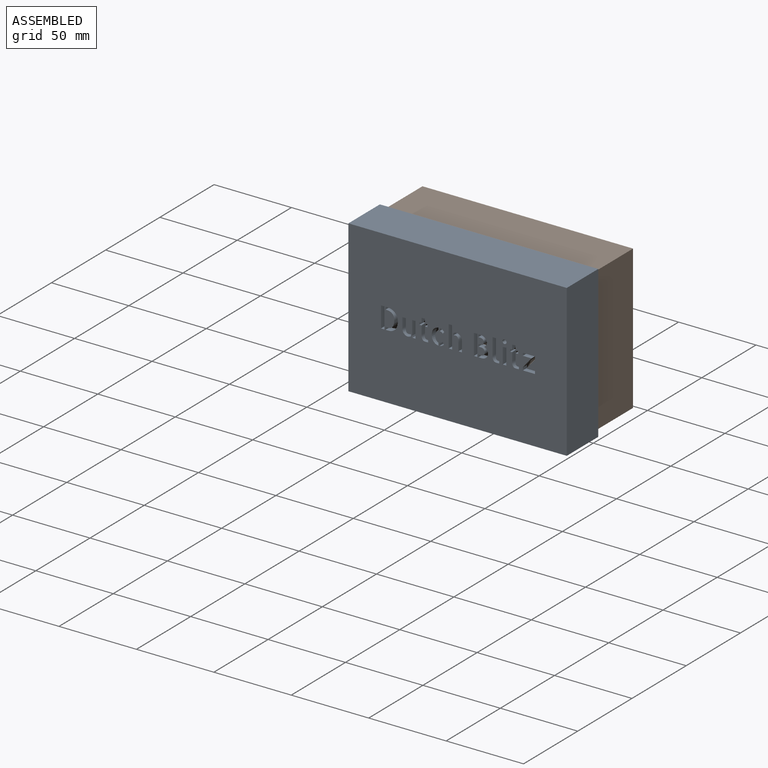
[diagram: assembled view]
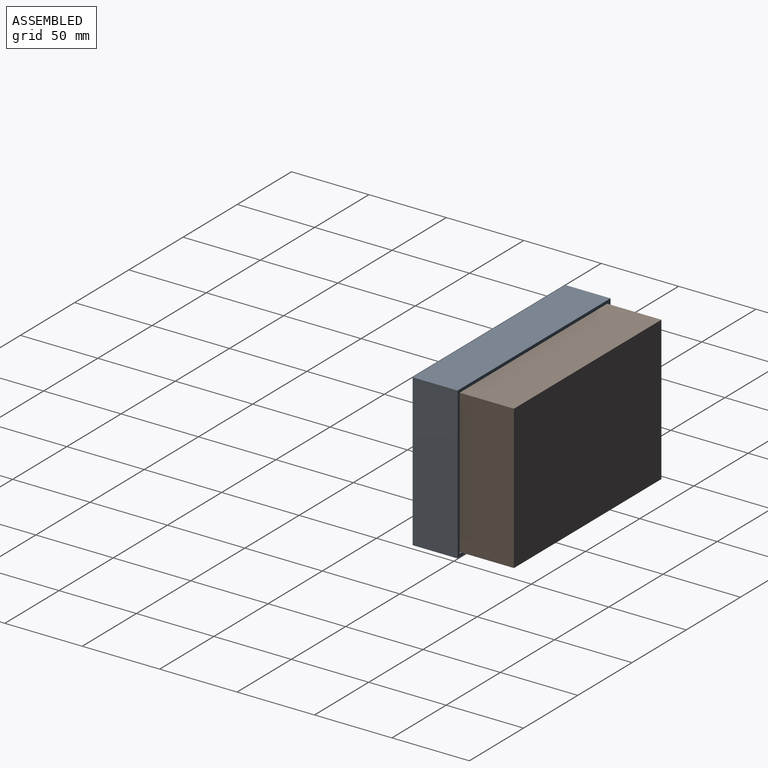
[diagram: assembled view, second angle]
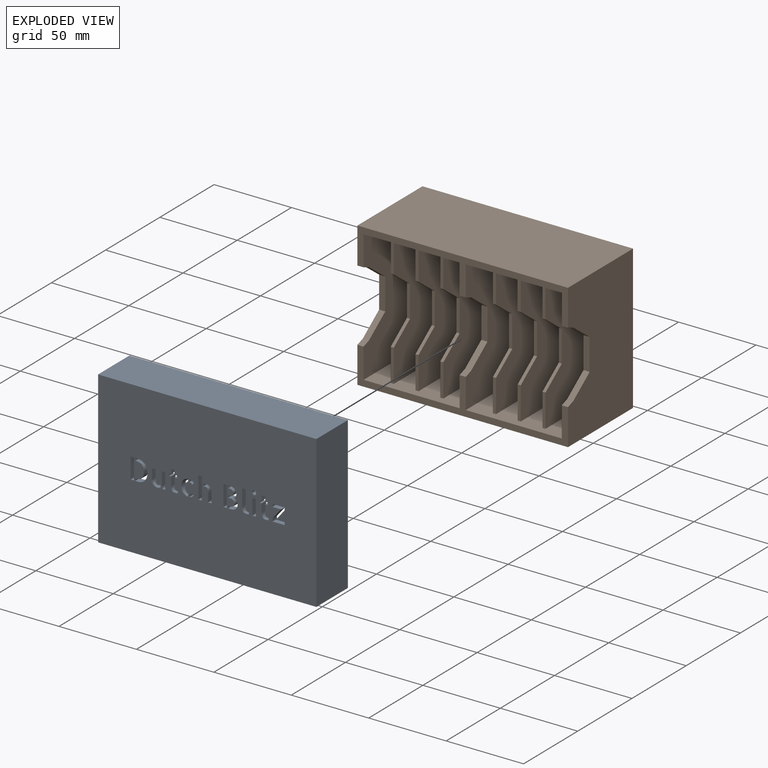
[diagram: exploded view]
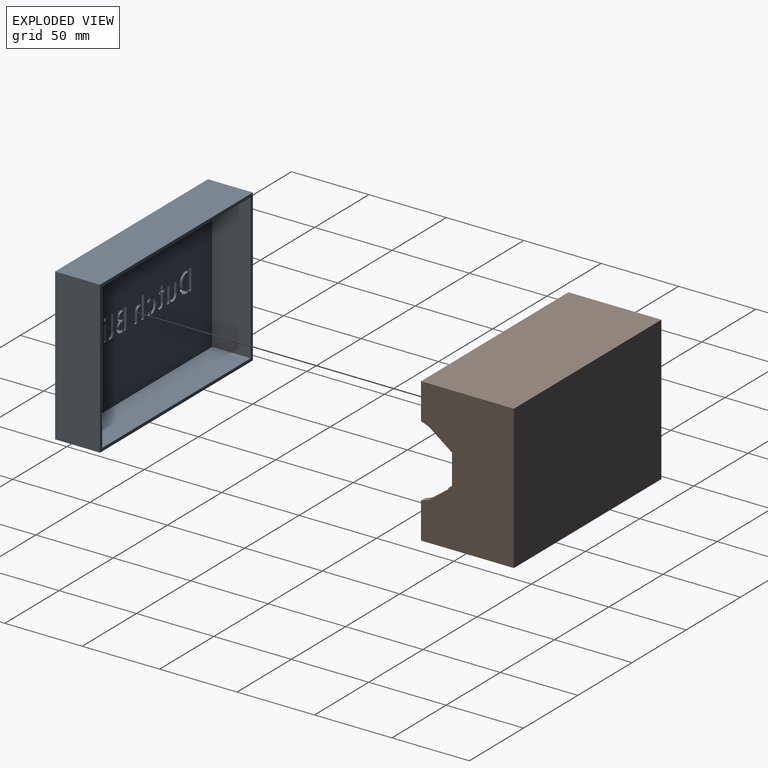
[diagram: exploded view, second angle]
ASSEMBLY  parts=2 mates=3
PART A: 246 faces, bbox 141x29x98 mm
  f0: plane 141x98mm, normal (0,-1,0), area 13360.9mm2, adj f2,f3,f4,f5,f11,f12,f13,f14
  f1: plane 137x94mm, normal (0,1,0), area 12420.9mm2, adj f6,f7,f8,f9,f11,f12,f13,f14
  f2: plane 98x29mm, normal (1,0,0), area 2842mm2, adj f0,f3,f5,f10
  f3: plane 141x29mm, normal (0,0,1), area 4089mm2, adj f0,f2,f4,f10
  f4: plane 98x29mm, normal (-1,0,0), area 2842mm2, adj f0,f3,f5,f10
  f5: plane 141x29mm, normal (0,0,-1), area 4089mm2, adj f0,f2,f4,f10
  f6: plane 94x25mm, normal (1,0,0), area 2350mm2, adj f1,f7,f9,f10
  f7: plane 137x25mm, normal (0,0,-1), area 3425mm2, adj f1,f6,f8,f10
  f8: plane 94x25mm, normal (-1,0,0), area 2350mm2, adj f1,f7,f9,f10
  f9: plane 137x25mm, normal (0,0,1), area 3425mm2, adj f1,f6,f8,f10
  f10: plane 141x98mm, normal (0,1,0), area 940mm2, adj f2,f3,f4,f5,f6,f7,f8,f9
  f11: plane 7.82x4mm, normal (0,0,-1), area 31.3mm2, adj f0,f1,f12,f22
  f12: plane 4x1.77mm, normal (1,0,0), area 7.1mm2, adj f0,f1,f11,f13
  f13: plane 5.65x4mm, normal (0,0,1), area 22.6mm2, adj f0,f1,f12,f14
  f14: plane 4x0.36mm, normal (0.62,0,-0.78), area 1.9mm2, adj f0,f1,f13,f15
  f15: plane 6.46x5.29mm, normal (0.77,0,-0.63), area 33.4mm2, adj f0,f1,f14,f16
  f16: plane 4x1.77mm, normal (1,0,0), area 7.1mm2, adj f0,f1,f15,f17
  f17: plane 7.82x4mm, normal (0,0,1), area 31.3mm2, adj f0,f1,f16,f18
  f18: plane 4x1.77mm, normal (-1,0,0), area 7.1mm2, adj f0,f1,f17,f19
  f19: plane 5.65x4mm, normal (0,0,-1), area 22.6mm2, adj f0,f1,f18,f20
  f20: plane 4x0.36mm, normal (-0.62,0,0.78), area 1.9mm2, adj f0,f1,f19,f21
  f21: plane 6.46x5.29mm, normal (-0.77,0,0.63), area 33.4mm2, adj f0,f1,f20,f22
  f22: plane 4x1.77mm, normal (-1,0,0), area 7.1mm2, adj f0,f1,f11,f21
  f23: extruded ~4x0.97mm, area 4mm2, adj f0,f1,f24,f47
  f24: plane 5.67x4mm, normal (-1,0,0), area 22.7mm2, adj f0,f1,f23,f25
  f25: plane 4x1.64mm, normal (0,0,1), area 6.6mm2, adj f0,f1,f24,f26
  f26: plane 4x1.49mm, normal (-1,0,0), area 6mm2, adj f0,f1,f25,f27
  f27: plane 4x1.64mm, normal (0,0,-1), area 6.6mm2, adj f0,f1,f26,f28
  f28: plane 4x2.92mm, normal (-1,0,0), area 11.7mm2, adj f0,f1,f27,f29
  f29: plane 4x2.21mm, normal (0,0,-1), area 8.8mm2, adj f0,f1,f28,f30
  f30: plane 4x2.92mm, normal (1,0,0), area 11.7mm2, adj f0,f1,f29,f31
  f31: plane 4x1.35mm, normal (0,0,-1), area 5.4mm2, adj f0,f1,f30,f32
  f32: plane 4x1.49mm, normal (1,0,0), area 6mm2, adj f0,f1,f31,f33
  f33: plane 4x1.35mm, normal (0,0,1), area 5.4mm2, adj f0,f1,f32,f34
  f34: plane 5.54x4mm, normal (1,0,0), area 22.2mm2, adj f0,f1,f33,f35
  f35: extruded ~4x0.77mm, area 3.1mm2, adj f0,f1,f34,f36
  f36: extruded ~4x1.01mm, area 4.2mm2, adj f0,f1,f35,f37
  f37: extruded ~4x0.95mm, area 4.3mm2, adj f0,f1,f36,f38
  f38: extruded ~4x0.97mm, area 4.5mm2, adj f0,f1,f37,f39
  f39: extruded ~4x0.48mm, area 1.9mm2, adj f0,f1,f38,f40
  f40: extruded ~4x0.56mm, area 2.2mm2, adj f0,f1,f39,f41
  f41: extruded ~4x0.56mm, area 2.2mm2, adj f0,f1,f40,f42
  f42: extruded ~4x0.48mm, area 1.9mm2, adj f0,f1,f41,f43
  f43: extruded ~4x0.48mm, area 1.9mm2, adj f0,f1,f42,f44
  f44: plane 4x1.35mm, normal (-1,0,0), area 5.4mm2, adj f0,f1,f43,f45
  f45: extruded ~4x0.79mm, area 3.2mm2, adj f0,f1,f44,f46
  f46: extruded ~4x0.68mm, area 2.9mm2, adj f0,f1,f45,f47
  f47: extruded ~4x0.53mm, area 2.9mm2, adj f0,f1,f23,f46
  f48: extruded ~4x0.92mm, area 4.1mm2, adj f0,f1,f49,f55
  f49: extruded ~4x0.93mm, area 4.1mm2, adj f0,f1,f48,f50
  f50: extruded ~4x0.93mm, area 4.1mm2, adj f0,f1,f49,f51
  f51: extruded ~4x0.91mm, area 4.1mm2, adj f0,f1,f50,f52
  f52: extruded ~4x0.93mm, area 4.1mm2, adj f0,f1,f51,f53
  f53: extruded ~4x0.91mm, area 4mm2, adj f0,f1,f52,f54
  f54: extruded ~4x0.92mm, area 4.1mm2, adj f0,f1,f53,f55
  f55: extruded ~4x0.93mm, area 4.1mm2, adj f0,f1,f48,f54
  f56: plane 4x2.23mm, normal (0,0,1), area 8.9mm2, adj f0,f1,f57,f59
  f57: plane 10.28x4mm, normal (-1,0,0), area 41.1mm2, adj f0,f1,f56,f58
  f58: plane 4x2.23mm, normal (0,0,-1), area 8.9mm2, adj f0,f1,f57,f59
  f59: plane 10.28x4mm, normal (1,0,0), area 41.1mm2, adj f0,f1,f56,f58
  f60: extruded ~4x0.72mm, area 3.5mm2, adj f0,f1,f61,f77
  f61: extruded ~4x1.13mm, area 5.8mm2, adj f0,f1,f60,f62
  f62: extruded ~4x1.39mm, area 5.8mm2, adj f0,f1,f61,f63
  f63: extruded ~4x1.12mm, area 4.6mm2, adj f0,f1,f62,f64
  f64: extruded ~4x1.07mm, area 4.6mm2, adj f0,f1,f63,f65
  f65: plane 4x1.4mm, normal (1,0,0), area 5.6mm2, adj f0,f1,f64,f66
  f66: extruded ~4x0.83mm, area 3.5mm2, adj f0,f1,f65,f67
  f67: extruded ~4x0.68mm, area 2.8mm2, adj f0,f1,f66,f68
  f68: extruded ~4x0.97mm, area 4mm2, adj f0,f1,f67,f69
  f69: extruded ~4x0.68mm, area 3.5mm2, adj f0,f1,f68,f70
  f70: extruded ~4x1mm, area 4.2mm2, adj f0,f1,f69,f71
  f71: extruded ~4x1.18mm, area 4.7mm2, adj f0,f1,f70,f72
  f72: plane 5.6x4mm, normal (1,0,0), area 22.4mm2, adj f0,f1,f71,f73
  f73: plane 4x2.22mm, normal (0,0,1), area 8.9mm2, adj f0,f1,f72,f74
  f74: plane 5.78x4mm, normal (-1,0,0), area 23.1mm2, adj f0,f1,f73,f75
  f75: extruded ~4x0.89mm, area 3.6mm2, adj f0,f1,f74,f76
  f76: extruded ~4x0.9mm, area 3.6mm2, adj f0,f1,f75,f77
  f77: extruded ~4x0.86mm, area 3.6mm2, adj f0,f1,f60,f76
  f78: extruded ~4x0.89mm, area 3.8mm2, adj f0,f1,f79,f116
  f79: extruded ~4x0.68mm, area 3mm2, adj f0,f1,f78,f80
  f80: extruded ~4x0.63mm, area 3.4mm2, adj f0,f1,f79,f81
  f81: extruded ~4x0.81mm, area 3.7mm2, adj f0,f1,f80,f82
  f82: extruded ~4x1.03mm, area 4.2mm2, adj f0,f1,f81,f83
  f83: extruded ~4x1.67mm, area 6.9mm2, adj f0,f1,f82,f84
  f84: extruded ~4x1.14mm, area 6.1mm2, adj f0,f1,f83,f85
  f85: extruded ~4x1.42mm, area 6.3mm2, adj f0,f1,f84,f86
  f86: extruded ~4x1.66mm, area 6.7mm2, adj f0,f1,f85,f87
  f87: plane 4x0.93mm, normal (0,0,-1), area 3.7mm2, adj f0,f1,f86,f88
  f88: plane 4x1.66mm, normal (1,0,0), area 6.6mm2, adj f0,f1,f87,f89
  f89: plane 4x0.71mm, normal (0,0,1), area 2.8mm2, adj f0,f1,f88,f90
  f90: extruded ~4x1.35mm, area 5.5mm2, adj f0,f1,f89,f91
  f91: extruded ~4x0.78mm, area 3.7mm2, adj f0,f1,f90,f92
  f92: extruded ~4x0.65mm, area 3mm2, adj f0,f1,f91,f93
  f93: extruded ~4x0.69mm, area 2.8mm2, adj f0,f1,f92,f94
  f94: extruded ~4x1.26mm, area 5.2mm2, adj f0,f1,f93,f95
  f95: extruded ~4x0.62mm, area 3.5mm2, adj f0,f1,f94,f96
  f96: extruded ~4x0.78mm, area 3.3mm2, adj f0,f1,f95,f97
  f97: extruded ~4x0.82mm, area 3.3mm2, adj f0,f1,f96,f98
  f98: plane 4x0.88mm, normal (0,0,-1), area 3.5mm2, adj f0,f1,f97,f99
  f99: plane 4x1.48mm, normal (1,0,0), area 5.9mm2, adj f0,f1,f98,f100
  f100: plane 4x1.82mm, normal (0,0,1), area 7.3mm2, adj f0,f1,f99,f101
  f101: extruded ~4x1.66mm, area 7.4mm2, adj f0,f1,f100,f102
  f102: extruded ~4x1.66mm, area 7.2mm2, adj f0,f1,f101,f103
  f103: extruded ~4x1.66mm, area 7.1mm2, adj f0,f1,f102,f104
  f104: extruded ~4x1.51mm, area 6.8mm2, adj f0,f1,f103,f105
  f105: plane 4x1.99mm, normal (0,0,-1), area 8mm2, adj f0,f1,f104,f106
  f106: plane 4x1.6mm, normal (1,0,0), area 6.4mm2, adj f0,f1,f105,f107
  f107: plane 4x2.12mm, normal (0,0,1), area 8.5mm2, adj f0,f1,f106,f108
  f108: extruded ~4x0.46mm, area 1.8mm2, adj f0,f1,f107,f109
  f109: extruded ~4x0.79mm, area 3.2mm2, adj f0,f1,f108,f110
  f110: extruded ~4x0.93mm, area 4mm2, adj f0,f1,f109,f111
  f111: extruded ~4x0.89mm, area 4.5mm2, adj f0,f1,f110,f112
  f112: extruded ~4x1.09mm, area 5.2mm2, adj f0,f1,f111,f113
  f113: extruded ~4x1.57mm, area 6.4mm2, adj f0,f1,f112,f114
  f114: extruded ~4x1.32mm, area 5.5mm2, adj f0,f1,f113,f115
  f115: extruded ~4x0.97mm, area 4.8mm2, adj f0,f1,f114,f116
  f116: extruded ~4x0.88mm, area 4.3mm2, adj f0,f1,f78,f115
  f117: plane 4x2.19mm, normal (0,0,-1), area 8.8mm2, adj f0,f1,f118,f120
  f118: plane 13.44x4mm, normal (1,0,0), area 53.8mm2, adj f0,f1,f117,f119
  f119: plane 4x2.19mm, normal (0,0,1), area 8.8mm2, adj f0,f1,f118,f120
  f120: plane 13.44x4mm, normal (-1,0,0), area 53.8mm2, adj f0,f1,f117,f119
  f121: extruded ~4x0.97mm, area 4mm2, adj f0,f1,f122,f137
  f122: plane 11.03x4mm, normal (-1,0,0), area 44.1mm2, adj f0,f1,f121,f123
  f123: plane 4x2.23mm, normal (0,0,-1), area 8.9mm2, adj f0,f1,f122,f124
  f124: plane 10.92x4mm, normal (1,0,0), area 43.7mm2, adj f0,f1,f123,f125
  f125: extruded ~4x0.77mm, area 3.1mm2, adj f0,f1,f124,f126
  f126: extruded ~4x1.01mm, area 4.2mm2, adj f0,f1,f125,f127
  f127: extruded ~4x0.94mm, area 4.3mm2, adj f0,f1,f126,f128
  f128: extruded ~4x0.97mm, area 4.5mm2, adj f0,f1,f127,f129
  f129: extruded ~4x0.49mm, area 2mm2, adj f0,f1,f128,f130
  f130: extruded ~4x0.55mm, area 2.2mm2, adj f0,f1,f129,f131
  f131: extruded ~4x0.55mm, area 2.2mm2, adj f0,f1,f130,f132
  f132: extruded ~4x0.48mm, area 1.9mm2, adj f0,f1,f131,f133
  f133: extruded ~4x0.49mm, area 2mm2, adj f0,f1,f132,f134
  f134: plane 4x1.35mm, normal (-1,0,0), area 5.4mm2, adj f0,f1,f133,f135
  f135: extruded ~4x0.81mm, area 3.3mm2, adj f0,f1,f134,f136
  f136: extruded ~4x0.67mm, area 2.8mm2, adj f0,f1,f135,f137
  f137: extruded ~4x0.53mm, area 2.8mm2, adj f0,f1,f121,f136
  f138: extruded ~4x0.76mm, area 3.9mm2, adj f0,f1,f139,f143
  f139: plane 4x1.18mm, normal (-0.77,0,0.64), area 6.2mm2, adj f0,f1,f138,f140
  f140: extruded ~4x1.3mm, area 6.8mm2, adj f0,f1,f139,f141
  f141: extruded ~4x1.72mm, area 7.2mm2, adj f0,f1,f140,f142
  f142: plane 4x1.75mm, normal (1,0,0), area 7mm2, adj f0,f1,f141,f143
  f143: extruded ~4x1.29mm, area 5.4mm2, adj f0,f1,f138,f142
  f144: extruded ~4x1.12mm, area 4.7mm2, adj f0,f1,f145,f149
  f145: plane 4x1.81mm, normal (1,0,0), area 7.2mm2, adj f0,f1,f144,f146
  f146: extruded ~4x1.6mm, area 6.7mm2, adj f0,f1,f145,f147
  f147: extruded ~4x1.22mm, area 6.6mm2, adj f0,f1,f146,f148
  f148: plane 4x1.18mm, normal (-0.82,0,-0.57), area 5.8mm2, adj f0,f1,f147,f149
  f149: extruded ~4x0.89mm, area 4.2mm2, adj f0,f1,f144,f148
  f150: extruded ~4x1.95mm, area 7.9mm2, adj f0,f1,f151,f165
  f151: extruded ~4x1.97mm, area 8mm2, adj f0,f1,f150,f152
  f152: extruded ~4x1.63mm, area 7.4mm2, adj f0,f1,f151,f153
  f153: extruded ~4x1.37mm, area 7.1mm2, adj f0,f1,f152,f154
  f154: extruded ~4x1.81mm, area 7.5mm2, adj f0,f1,f153,f155
  f155: plane 4x1.81mm, normal (-1,0,0), area 7.2mm2, adj f0,f1,f154,f156
  f156: extruded ~4x0.85mm, area 3.8mm2, adj f0,f1,f155,f157
  f157: extruded ~4x0.77mm, area 4mm2, adj f0,f1,f156,f158
  f158: extruded ~4x1.05mm, area 4.5mm2, adj f0,f1,f157,f159
  f159: extruded ~4x1.27mm, area 5.1mm2, adj f0,f1,f158,f160
  f160: extruded ~4x2.24mm, area 9.3mm2, adj f0,f1,f159,f161
  f161: extruded ~4x1.46mm, area 7.6mm2, adj f0,f1,f160,f162
  f162: plane 4x1.77mm, normal (-1,0,0), area 7.1mm2, adj f0,f1,f161,f163
  f163: extruded ~4x1.78mm, area 7.4mm2, adj f0,f1,f162,f164
  f164: extruded ~4x1.38mm, area 7.1mm2, adj f0,f1,f163,f165
  f165: extruded ~4x1.6mm, area 7.4mm2, adj f0,f1,f150,f164
  f166: plane 4x2.21mm, normal (0,0,-1), area 8.8mm2, adj f0,f1,f167,f169
  f167: plane 14.17x4mm, normal (1,0,0), area 56.7mm2, adj f0,f1,f166,f168
  f168: plane 4x2.21mm, normal (0,0,1), area 8.8mm2, adj f0,f1,f167,f169
  f169: plane 14.17x4mm, normal (-1,0,0), area 56.7mm2, adj f0,f1,f166,f168
  f170: extruded ~4x0.97mm, area 4mm2, adj f0,f1,f171,f194
  f171: plane 5.67x4mm, normal (-1,0,0), area 22.7mm2, adj f0,f1,f170,f172
  f172: plane 4x1.64mm, normal (0,0,1), area 6.6mm2, adj f0,f1,f171,f173
  f173: plane 4x1.49mm, normal (-1,0,0), area 6mm2, adj f0,f1,f172,f174
  f174: plane 4x1.64mm, normal (0,0,-1), area 6.6mm2, adj f0,f1,f173,f175
  f175: plane 4x2.92mm, normal (-1,0,0), area 11.7mm2, adj f0,f1,f174,f176
  f176: plane 4x2.21mm, normal (0,0,-1), area 8.8mm2, adj f0,f1,f175,f177
  f177: plane 4x2.92mm, normal (1,0,0), area 11.7mm2, adj f0,f1,f176,f178
  f178: plane 4x1.35mm, normal (0,0,-1), area 5.4mm2, adj f0,f1,f177,f179
  f179: plane 4x1.49mm, normal (1,0,0), area 6mm2, adj f0,f1,f178,f180
  f180: plane 4x1.35mm, normal (0,0,1), area 5.4mm2, adj f0,f1,f179,f181
  f181: plane 5.54x4mm, normal (1,0,0), area 22.2mm2, adj f0,f1,f180,f182
  f182: extruded ~4x0.77mm, area 3.1mm2, adj f0,f1,f181,f183
  f183: extruded ~4x1.01mm, area 4.2mm2, adj f0,f1,f182,f184
  f184: extruded ~4x0.95mm, area 4.3mm2, adj f0,f1,f183,f185
  f185: extruded ~4x0.97mm, area 4.5mm2, adj f0,f1,f184,f186
  f186: extruded ~4x0.48mm, area 1.9mm2, adj f0,f1,f185,f187
  f187: extruded ~4x0.56mm, area 2.2mm2, adj f0,f1,f186,f188
  f188: extruded ~4x0.56mm, area 2.2mm2, adj f0,f1,f187,f189
  f189: extruded ~4x0.48mm, area 1.9mm2, adj f0,f1,f188,f190
  f190: extruded ~4x0.48mm, area 1.9mm2, adj f0,f1,f189,f191
  f191: plane 4x1.35mm, normal (-1,0,0), area 5.4mm2, adj f0,f1,f190,f192
  f192: extruded ~4x0.79mm, area 3.2mm2, adj f0,f1,f191,f193
  f193: extruded ~4x0.68mm, area 2.9mm2, adj f0,f1,f192,f194
  f194: extruded ~4x0.53mm, area 2.9mm2, adj f0,f1,f170,f193
  f195: plane 10.28x4mm, normal (-1,0,0), area 41.1mm2, adj f0,f1,f196,f199
  f196: plane 4x2.22mm, normal (0,0,-1), area 8.9mm2, adj f0,f1,f195,f197
  f197: plane 9.23x4mm, normal (1,0,0), area 36.9mm2, adj f0,f1,f196,f198
  f198: plane 4x1.06mm, normal (0.98,0,0.22), area 4.3mm2, adj f0,f1,f197,f199
  f199: plane 4x1.99mm, normal (0,0,1), area 7.9mm2, adj f0,f1,f195,f198
  f200: extruded ~4x1.19mm, area 4.8mm2, adj f0,f1,f201,f219
  f201: plane 5.6x4mm, normal (-1,0,0), area 22.4mm2, adj f0,f1,f200,f202
  f202: plane 4x2.22mm, normal (0,0,-1), area 8.9mm2, adj f0,f1,f201,f203
  f203: plane 5.78x4mm, normal (1,0,0), area 23.1mm2, adj f0,f1,f202,f204
  f204: extruded ~4x0.89mm, area 3.6mm2, adj f0,f1,f203,f205
  f205: extruded ~4x0.9mm, area 3.6mm2, adj f0,f1,f204,f206
  f206: extruded ~4x0.86mm, area 3.6mm2, adj f0,f1,f205,f207
  f207: extruded ~4x0.72mm, area 3.5mm2, adj f0,f1,f206,f208
  f208: extruded ~4x0.55mm, area 3mm2, adj f0,f1,f207,f209
  f209: extruded ~4x0.57mm, area 2.8mm2, adj f0,f1,f208,f210
  f210: extruded ~4x0.65mm, area 2.8mm2, adj f0,f1,f209,f211
  f211: extruded ~4x0.78mm, area 3.2mm2, adj f0,f1,f210,f212
  f212: extruded ~4x1.1mm, area 4.5mm2, adj f0,f1,f211,f213
  f213: extruded ~4x1.03mm, area 4.5mm2, adj f0,f1,f212,f214
  f214: plane 4x1.35mm, normal (-1,0,0), area 5.4mm2, adj f0,f1,f213,f215
  f215: extruded ~4x0.84mm, area 3.5mm2, adj f0,f1,f214,f216
  f216: extruded ~4x0.67mm, area 2.7mm2, adj f0,f1,f215,f217
  f217: extruded ~4x0.97mm, area 4.1mm2, adj f0,f1,f216,f218
  f218: extruded ~4x0.67mm, area 3.5mm2, adj f0,f1,f217,f219
  f219: extruded ~4x0.98mm, area 4mm2, adj f0,f1,f200,f218
  f220: extruded ~4x2.98mm, area 12.2mm2, adj f0,f1,f221,f241
  f221: plane 4x1.11mm, normal (0,0,-1), area 4.5mm2, adj f0,f1,f220,f222
  f222: plane 4x1.66mm, normal (1,0,0), area 6.6mm2, adj f0,f1,f221,f223
  f223: plane 4x0.53mm, normal (0,0,1), area 2.1mm2, adj f0,f1,f222,f224
  f224: extruded ~4x2.55mm, area 10.4mm2, adj f0,f1,f223,f225
  f225: extruded ~4x1.56mm, area 7.6mm2, adj f0,f1,f224,f226
  f226: extruded ~4x1.49mm, area 6.8mm2, adj f0,f1,f225,f227
  f227: extruded ~4x1.66mm, area 6.7mm2, adj f0,f1,f226,f228
  f228: extruded ~4.12x4mm, area 17.2mm2, adj f0,f1,f227,f229
  f229: extruded ~4x3.21mm, area 14.6mm2, adj f0,f1,f228,f230
  f230: plane 4x1.42mm, normal (0,0,-1), area 5.7mm2, adj f0,f1,f229,f231
  f231: plane 4x1.6mm, normal (1,0,0), area 6.4mm2, adj f0,f1,f230,f232
  f232: plane 4x2.15mm, normal (0,0,1), area 8.6mm2, adj f0,f1,f231,f233
  f233: extruded ~4x0.78mm, area 3.1mm2, adj f0,f1,f232,f234
  f234: extruded ~4x1.17mm, area 4.8mm2, adj f0,f1,f233,f235
  f235: extruded ~4x1.32mm, area 6mm2, adj f0,f1,f234,f236
  f236: extruded ~4x1.25mm, area 7.1mm2, adj f0,f1,f235,f237
  f237: extruded ~4x1.97mm, area 8.7mm2, adj f0,f1,f236,f238
  f238: extruded ~4x2.83mm, area 11.5mm2, adj f0,f1,f237,f239
  f239: extruded ~4x2.34mm, area 9.6mm2, adj f0,f1,f238,f240
  f240: extruded ~4x2.03mm, area 9.7mm2, adj f0,f1,f239,f241
  f241: extruded ~4x2.13mm, area 10.3mm2, adj f0,f1,f220,f240
  f242: plane 4x2.19mm, normal (0,0,-1), area 8.8mm2, adj f0,f1,f243,f245
  f243: plane 13.44x4mm, normal (1,0,0), area 53.8mm2, adj f0,f1,f242,f244
  f244: plane 4x2.19mm, normal (0,0,1), area 8.8mm2, adj f0,f1,f243,f245
  f245: plane 13.44x4mm, normal (-1,0,0), area 53.8mm2, adj f0,f1,f242,f244
PART B: 80 faces, bbox 136x60x93 mm
  f0: plane 93x60mm, normal (1,0,0), area 4883.6mm2, adj f1,f8,f10,f11,f20,f75,f76,f77
  f1: plane 136x23.35mm, normal (0,-1,0), area 776.2mm2, adj f0,f8,f9,f12,f14,f16,f17,f18
  f2: plane 21.13x2mm, normal (0,-1,0), area 42.3mm2, adj f13,f22,f24,f63
  f3: plane 21.13x2mm, normal (0,-1,0), area 42.3mm2, adj f13,f26,f27,f60
  f4: plane 21.13x2mm, normal (0,-1,0), area 42.3mm2, adj f13,f30,f31,f57
  f5: plane 21.13x2mm, normal (0,-1,0), area 42.3mm2, adj f15,f35,f37,f54
  f6: plane 21.13x2mm, normal (0,-1,0), area 42.3mm2, adj f15,f39,f40,f51
  f7: plane 21.13x2mm, normal (0,-1,0), area 42.3mm2, adj f15,f43,f44,f48
  f8: plane 136x60mm, normal (0,0,1), area 8160mm2, adj f0,f1,f9,f11
  f9: plane 93x60mm, normal (-1,0,0), area 4883.6mm2, adj f1,f8,f10,f11,f20,f65,f66,f67
  f10: plane 136x60mm, normal (0,0,-1), area 8160mm2, adj f0,f9,f11,f20
  f11: plane 136x93mm, normal (0,1,0), area 12648mm2, adj f0,f8,f9,f10
  f12: plane 62x55mm, normal (0,0,-1), area 3110mm2, adj f1,f18,f19,f21,f22,f23,f24,f25
  f13: plane 62x55mm, normal (0,0,1), area 3110mm2, adj f2,f3,f4,f18,f19,f20,f22,f23
  f14: plane 62x55mm, normal (0,0,-1), area 3110mm2, adj f1,f16,f17,f34,f35,f36,f37,f38
  f15: plane 62x55mm, normal (0,0,1), area 3110mm2, adj f5,f6,f7,f16,f17,f20,f35,f36
  f16: plane 85x55mm, normal (1,0,0), area 3978.6mm2, adj f1,f14,f15,f20,f42,f70,f71,f72
  f17: plane 85x55mm, normal (-1,0,0), area 3978.6mm2, adj f1,f14,f15,f20,f36,f75,f76,f77
  f18: plane 85x55mm, normal (-1,0,0), area 3978.6mm2, adj f1,f12,f13,f20,f29,f70,f71,f72
  f19: plane 85x55mm, normal (1,0,0), area 3978.6mm2, adj f1,f12,f13,f20,f23,f65,f66,f67
  f20: plane 136x23.35mm, normal (0,-1,0), area 776.2mm2, adj f0,f9,f10,f13,f15,f16,f17,f18
  f21: plane 21.13x2mm, normal (0,-1,0), area 42.3mm2, adj f12,f22,f24,f64
  f22: plane 85x50mm, normal (1,0,0), area 3776.3mm2, adj f2,f12,f13,f21,f33,f62,f63,f64
  f23: plane 85x14mm, normal (0,-1,0), area 1190mm2, adj f12,f13,f19,f24
  f24: plane 85x50mm, normal (-1,0,0), area 3776.3mm2, adj f2,f12,f13,f21,f23,f62,f63,f64
  f25: plane 21.13x2mm, normal (0,-1,0), area 42.3mm2, adj f12,f26,f27,f61
  f26: plane 85x50mm, normal (1,0,0), area 3776.3mm2, adj f3,f12,f13,f25,f32,f59,f60,f61
  f27: plane 85x50mm, normal (-1,0,0), area 3776.3mm2, adj f3,f12,f13,f25,f33,f59,f60,f61
  f28: plane 21.13x2mm, normal (0,-1,0), area 42.3mm2, adj f12,f30,f31,f58
  f29: plane 85x14mm, normal (0,-1,0), area 1190mm2, adj f12,f13,f18,f30
  f30: plane 85x50mm, normal (1,0,0), area 3776.3mm2, adj f4,f12,f13,f28,f29,f56,f57,f58
  f31: plane 85x50mm, normal (-1,0,0), area 3776.3mm2, adj f4,f12,f13,f28,f32,f56,f57,f58
  f32: plane 85x14mm, normal (0,-1,0), area 1190mm2, adj f12,f13,f26,f31
  f33: plane 85x14mm, normal (0,-1,0), area 1190mm2, adj f12,f13,f22,f27
  f34: plane 21.13x2mm, normal (0,-1,0), area 42.3mm2, adj f14,f35,f37,f55
  f35: plane 85x50mm, normal (-1,0,0), area 3776.3mm2, adj f5,f14,f15,f34,f46,f53,f54,f55
  f36: plane 85x14mm, normal (0,-1,0), area 1190mm2, adj f14,f15,f17,f37
  f37: plane 85x50mm, normal (1,0,0), area 3776.3mm2, adj f5,f14,f15,f34,f36,f53,f54,f55
  f38: plane 21.13x2mm, normal (0,-1,0), area 42.3mm2, adj f14,f39,f40,f52
  f39: plane 85x50mm, normal (1,0,0), area 3776.3mm2, adj f6,f14,f15,f38,f46,f50,f51,f52
  f40: plane 85x50mm, normal (-1,0,0), area 3776.3mm2, adj f6,f14,f15,f38,f45,f50,f51,f52
  f41: plane 21.13x2mm, normal (0,-1,0), area 42.3mm2, adj f14,f43,f44,f49
  f42: plane 85x14mm, normal (0,-1,0), area 1190mm2, adj f14,f15,f16,f43
  f43: plane 85x50mm, normal (-1,0,0), area 3776.3mm2, adj f7,f14,f15,f41,f42,f47,f48,f49
  f44: plane 85x50mm, normal (1,0,0), area 3776.3mm2, adj f7,f14,f15,f41,f45,f47,f48,f49
  f45: plane 85x14mm, normal (0,-1,0), area 1190mm2, adj f14,f15,f40,f44
  f46: plane 85x14mm, normal (0,-1,0), area 1190mm2, adj f14,f15,f35,f39
  f47: plane 20.42x2mm, normal (0,-1,0), area 40.8mm2, adj f43,f44,f48,f49
  f48: plane 15x11.17mm, normal (0,-0.6,0.8), area 37.4mm2, adj f7,f43,f44,f47
  f49: plane 15x11.17mm, normal (0,-0.6,-0.8), area 37.4mm2, adj f41,f43,f44,f47
  f50: plane 20.42x2mm, normal (0,-1,0), area 40.8mm2, adj f39,f40,f51,f52
  f51: plane 15x11.17mm, normal (0,-0.6,0.8), area 37.4mm2, adj f6,f39,f40,f50
  f52: plane 15x11.17mm, normal (0,-0.6,-0.8), area 37.4mm2, adj f38,f39,f40,f50
  f53: plane 20.42x2mm, normal (0,-1,0), area 40.8mm2, adj f35,f37,f54,f55
  f54: plane 15x11.17mm, normal (0,-0.6,0.8), area 37.4mm2, adj f5,f35,f37,f53
  f55: plane 15x11.17mm, normal (0,-0.6,-0.8), area 37.4mm2, adj f34,f35,f37,f53
  f56: plane 20.42x2mm, normal (0,-1,0), area 40.8mm2, adj f30,f31,f57,f58
  f57: plane 15x11.17mm, normal (0,-0.6,0.8), area 37.4mm2, adj f4,f30,f31,f56
  f58: plane 15x11.17mm, normal (0,-0.6,-0.8), area 37.4mm2, adj f28,f30,f31,f56
  f59: plane 20.42x2mm, normal (0,-1,0), area 40.8mm2, adj f26,f27,f60,f61
  f60: plane 15x11.17mm, normal (0,-0.6,0.8), area 37.4mm2, adj f3,f26,f27,f59
  f61: plane 15x11.17mm, normal (0,-0.6,-0.8), area 37.4mm2, adj f25,f26,f27,f59
  f62: plane 20.42x2mm, normal (0,-1,0), area 40.8mm2, adj f22,f24,f63,f64
  f63: plane 15x11.17mm, normal (0,-0.6,0.8), area 37.4mm2, adj f2,f22,f24,f62
  f64: plane 15x11.17mm, normal (0,-0.6,-0.8), area 37.4mm2, adj f21,f22,f24,f62
  f65: plane 5x4mm, normal (0,-0.33,-0.94), area 21.2mm2, adj f1,f9,f19,f69
  f66: plane 20.42x4mm, normal (0,-1,0), area 81.7mm2, adj f9,f19,f67,f69
  f67: plane 15x11.17mm, normal (0,-0.6,0.8), area 74.8mm2, adj f9,f19,f66,f68
  f68: plane 5x4mm, normal (0,-0.33,0.94), area 21.2mm2, adj f9,f19,f20,f67
  f69: plane 15x11.17mm, normal (0,-0.6,-0.8), area 74.8mm2, adj f9,f19,f65,f66
  f70: plane 5x4mm, normal (0,-0.33,-0.94), area 21.2mm2, adj f1,f16,f18,f74
  f71: plane 20.42x4mm, normal (0,-1,0), area 81.7mm2, adj f16,f18,f72,f74
  f72: plane 15x11.17mm, normal (0,-0.6,0.8), area 74.8mm2, adj f16,f18,f71,f73
  f73: plane 5x4mm, normal (0,-0.33,0.94), area 21.2mm2, adj f16,f18,f20,f72
  f74: plane 15x11.17mm, normal (0,-0.6,-0.8), area 74.8mm2, adj f16,f18,f70,f71
  f75: plane 5x4mm, normal (0,-0.33,-0.94), area 21.2mm2, adj f0,f1,f17,f77
  f76: plane 5x4mm, normal (0,-0.33,0.94), area 21.2mm2, adj f0,f17,f20,f78
  f77: plane 15x11.17mm, normal (0,-0.6,-0.8), area 74.8mm2, adj f0,f17,f75,f79
  f78: plane 15x11.17mm, normal (0,-0.6,0.8), area 74.8mm2, adj f0,f17,f76,f79
  f79: plane 20.42x4mm, normal (0,-1,0), area 81.7mm2, adj f0,f17,f77,f78
PLACE A t=(5.5,-21.93,22.69)mm
PLACE B t=(-35,33.07,-17.69)mm fixed
MATE planar A.f1 <-> B.f1  axis (0,1,0) through (-19.49,-21.93,24.33)mm
MATE planar A.f8 <-> B.f0  axis (-1,0,0) through (49,-9.43,24.31)mm
MATE planar A.f7 <-> B.f8  axis (0,0,-1) through (-19.5,-9.43,71.31)mm
